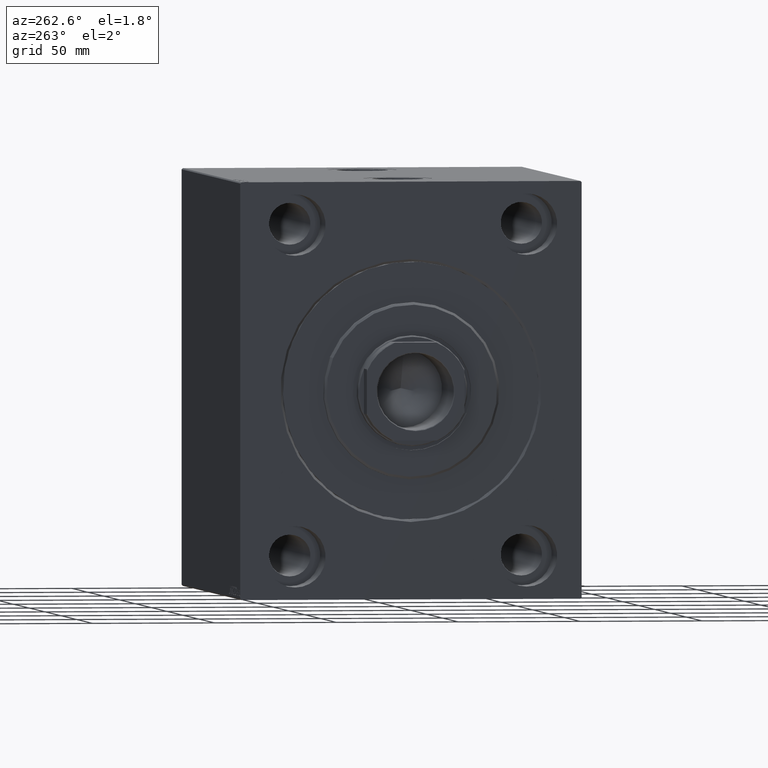
[diagram: clean part render]
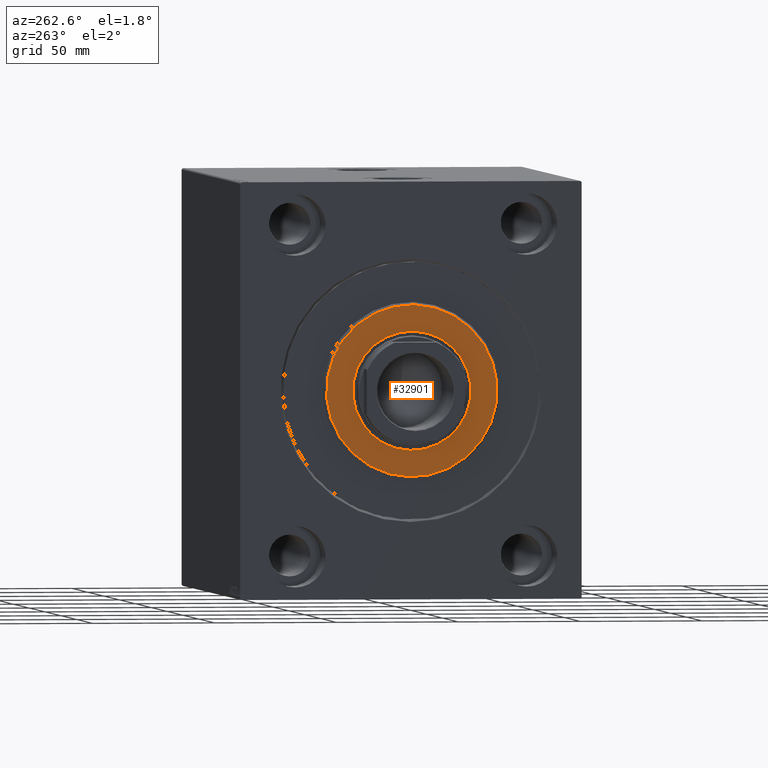
[diagram: same view with one face highlighted and labeled with its STEP entity id]
A machine part, auxiliary view. The second image highlights one B-rep face of the part: STEP entity #32901.
In plain terms, the highlighted planar face has unit normal (-1, 0, 0).
Its self-contained STEP definition (entity closure, byte-faithful):
#1248 = VERTEX_POINT ( 'NONE', #11715 ) ;
#1700 = VERTEX_POINT ( 'NONE', #22075 ) ;
#2316 = AXIS2_PLACEMENT_3D ( 'NONE', #32973, #29199, #5801 ) ;
#4802 = CARTESIAN_POINT ( 'NONE',  ( 3.000000000000000000, 0.000000000000000000, 0.000000000000000000 ) ) ;
#4949 = EDGE_LOOP ( 'NONE', ( #18495, #23307 ) ) ;
#5652 = EDGE_CURVE ( 'NONE', #1248, #1700, #32356, .T. ) ;
#5776 = CARTESIAN_POINT ( 'NONE',  ( 3.000000000000000000, 0.000000000000000000, 0.000000000000000000 ) ) ;
#5801 = DIRECTION ( 'NONE',  ( 0.000000000000000000, 0.000000000000000000, -1.000000000000000000 ) ) ;
#7854 = CARTESIAN_POINT ( 'NONE',  ( 3.000000000000000000, 0.000000000000000000, 0.000000000000000000 ) ) ;
#8448 = CARTESIAN_POINT ( 'NONE',  ( 3.000000000000000000, 0.000000000000000000, 35.00000000000002842 ) ) ;
#9147 = PLANE ( 'NONE',  #2316 ) ;
#11561 = AXIS2_PLACEMENT_3D ( 'NONE', #4802, #38685, #14594 ) ;
#11715 = CARTESIAN_POINT ( 'NONE',  ( 3.000000000000000000, 2.969768487932331287E-15, -24.25000000000000000 ) ) ;
#11960 = VERTEX_POINT ( 'NONE', #8448 ) ;
#12904 = AXIS2_PLACEMENT_3D ( 'NONE', #28808, #16093, #18998 ) ;
#14594 = DIRECTION ( 'NONE',  ( 0.000000000000000000, 0.000000000000000000, -1.000000000000000000 ) ) ;
#15284 = AXIS2_PLACEMENT_3D ( 'NONE', #5776, #19355, #19144 ) ;
#16093 = DIRECTION ( 'NONE',  ( -1.000000000000000000, 0.000000000000000000, -0.000000000000000000 ) ) ;
#18495 = ORIENTED_EDGE ( 'NONE', *, *, #32454, .T. ) ;
#18632 = VERTEX_POINT ( 'NONE', #35018 ) ;
#18677 = CIRCLE ( 'NONE', #11561, 35.00000000000002842 ) ;
#18998 = DIRECTION ( 'NONE',  ( 0.000000000000000000, 0.000000000000000000, -1.000000000000000000 ) ) ;
#19144 = DIRECTION ( 'NONE',  ( 0.000000000000000000, 0.000000000000000000, -1.000000000000000000 ) ) ;
#19355 = DIRECTION ( 'NONE',  ( -1.000000000000000000, 0.000000000000000000, -0.000000000000000000 ) ) ;
#22075 = CARTESIAN_POINT ( 'NONE',  ( 3.000000000000000000, 0.000000000000000000, 24.25000000000000000 ) ) ;
#23153 = FACE_BOUND ( 'NONE', #25054, .T. ) ;
#23307 = ORIENTED_EDGE ( 'NONE', *, *, #24807, .T. ) ;
#24807 = EDGE_CURVE ( 'NONE', #18632, #11960, #25637, .T. ) ;
#25054 = EDGE_LOOP ( 'NONE', ( #27265, #30050 ) ) ;
#25637 = CIRCLE ( 'NONE', #34832, 35.00000000000002842 ) ;
#27265 = ORIENTED_EDGE ( 'NONE', *, *, #28476, .T. ) ;
#28122 = DIRECTION ( 'NONE',  ( 0.000000000000000000, 0.000000000000000000, -1.000000000000000000 ) ) ;
#28476 = EDGE_CURVE ( 'NONE', #1700, #1248, #32100, .T. ) ;
#28808 = CARTESIAN_POINT ( 'NONE',  ( 3.000000000000000000, 0.000000000000000000, 0.000000000000000000 ) ) ;
#29199 = DIRECTION ( 'NONE',  ( 1.000000000000000000, -0.000000000000000000, 0.000000000000000000 ) ) ;
#30050 = ORIENTED_EDGE ( 'NONE', *, *, #5652, .T. ) ;
#32100 = CIRCLE ( 'NONE', #12904, 24.25000000000000000 ) ;
#32356 = CIRCLE ( 'NONE', #15284, 24.25000000000000000 ) ;
#32454 = EDGE_CURVE ( 'NONE', #11960, #18632, #18677, .T. ) ;
#32901 = ADVANCED_FACE ( 'NONE', ( #36114, #23153 ), #9147, .T. ) ;
#32973 = CARTESIAN_POINT ( 'NONE',  ( 3.000000000000000000, 0.000000000000000000, 0.000000000000000000 ) ) ;
#34832 = AXIS2_PLACEMENT_3D ( 'NONE', #7854, #42387, #28122 ) ;
#35018 = CARTESIAN_POINT ( 'NONE',  ( 3.000000000000000000, 4.347496136973104859E-15, -35.00000000000002842 ) ) ;
#36114 = FACE_OUTER_BOUND ( 'NONE', #4949, .T. ) ;
#38685 = DIRECTION ( 'NONE',  ( 1.000000000000000000, -0.000000000000000000, 0.000000000000000000 ) ) ;
#42387 = DIRECTION ( 'NONE',  ( 1.000000000000000000, -0.000000000000000000, 0.000000000000000000 ) ) ;